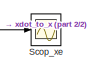
[diagram: root canvas - part 1/2, top right region]
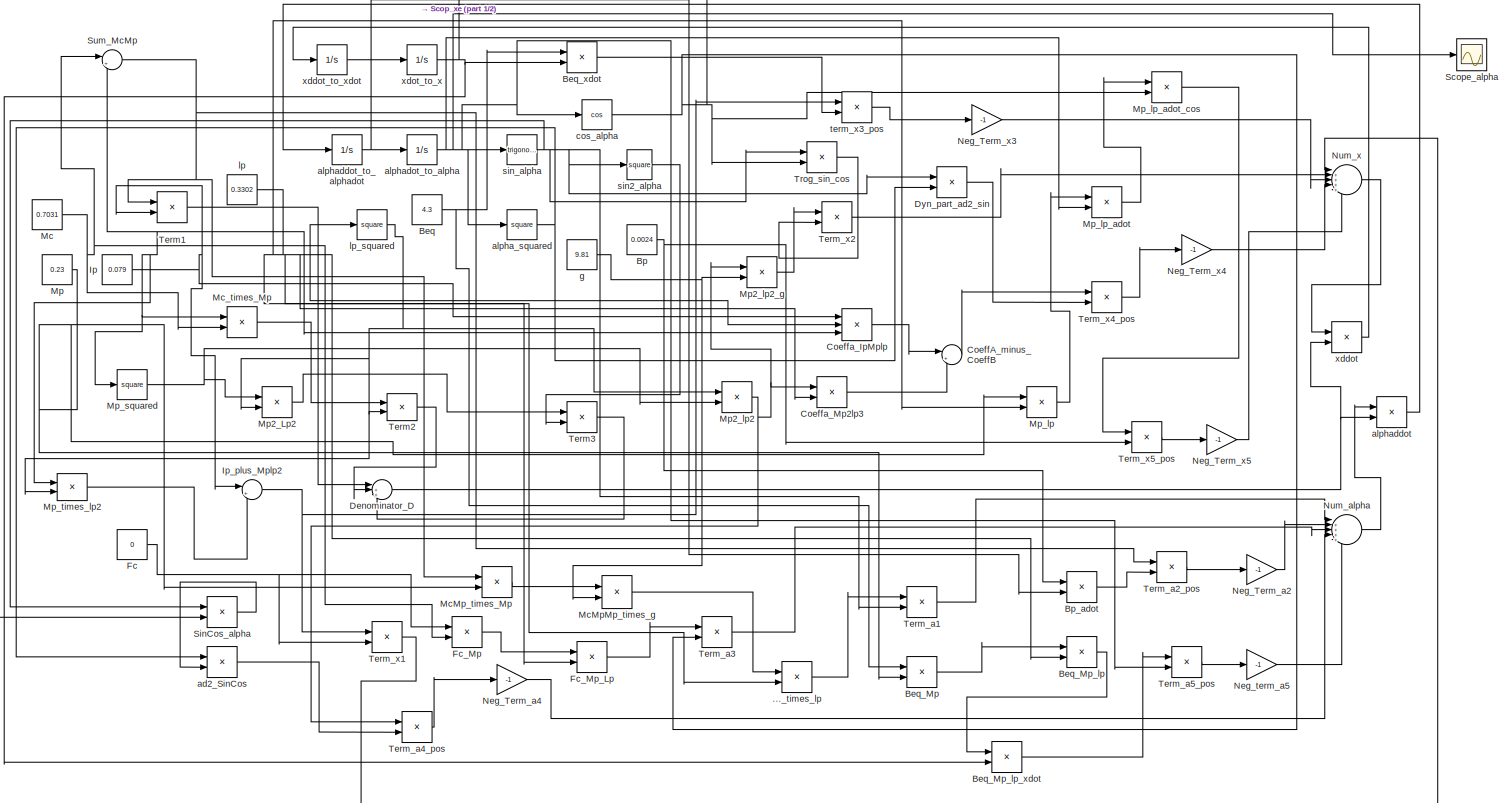
[diagram: root canvas - part 2/2, most of the canvas]
MODEL slx_2061fff94b7e
KIND model
CONFIG AbsTol = auto
CONFIG EnableMultiTasking = off
CONFIG FixedStep = auto
CONFIG MaxStep = auto
CONFIG MinStep = auto
CONFIG RelTol = 1e-3
CONFIG SampleTimeConstraint = Unconstrained
CONFIG SolverName = VariableStepAuto
CONFIG StartTime = 0.0
CONFIG StopTime = 10.0
BLOCK [Product] ..._times_lp
BLOCK [Constant] Beq
  Value = 4.3
BLOCK [Product] Beq_Mp
BLOCK [Product] Beq_Mp_lp
BLOCK [Product] Beq_Mp_lp_xdot
BLOCK [Product] Beq_xdot
BLOCK [Constant] Bp
  Value = 0.0024
BLOCK [Product] Bp_adot
BLOCK [Sum] CoeffA_minus_CoeffB
  Inputs = |+-
  NameLocation = right
BLOCK [Product] Coeffa_IpMplp
  Inputs = 3
BLOCK [Product] Coeffa_Mp2lp3
BLOCK [Sum] Denominator_D
  Inputs = |+++
BLOCK [Product] Dyn_part_ad2_sin
BLOCK [Constant] Fc
  Value = 0
BLOCK [Product] Fc_Mp
BLOCK [Product] Fc_Mp_Lp
BLOCK [Constant] Ip
  Value = 0.079
BLOCK [Sum] Ip_plus_Mplp2
  Inputs = |++
BLOCK [Constant] Mc
  Value = 0.7031
BLOCK [Product] McMpMp_times_g
BLOCK [Product] McMp_times_Mp
BLOCK [Product] Mc_times_Mp
BLOCK [Constant] Mp
  Value = 0.23
BLOCK [Product] Mp2_Lp2
BLOCK [Product] Mp2_lp2
BLOCK [Product] Mp2_lp2_g
BLOCK [Product] Mp_lp
BLOCK [Product] Mp_lp_adot
BLOCK [Product] Mp_lp_adot_cos
BLOCK [Math] Mp_squared
  Operator = square
BLOCK [Product] Mp_times_lp2
BLOCK [Gain] Neg_Term_a2
  Gain = -1
BLOCK [Gain] Neg_Term_a4
  Gain = -1
BLOCK [Gain] Neg_Term_x3
  Gain = -1
BLOCK [Gain] Neg_Term_x4
  Gain = -1
BLOCK [Gain] Neg_Term_x5
  Gain = -1
BLOCK [Gain] Neg_term_a5
  Gain = -1
BLOCK [Sum] Num_alpha
  Inputs = |+++++
BLOCK [Sum] Num_x
  Inputs = |+++++
BLOCK [Scope] Scop_xe
  ActiveDisplayYMaximum = 11.180072654286743
  ActiveDisplayYMinimum = -2.0957040519639394
  ContainerLayout = {"WindowBounds":[1280,1363,631,765],"gridDimensions":{"w":1,"h":1},"tileCount":1,"tileCoverage":1,"columnWeights":1,"rowWeights":1,"tileOccupancy":{"children":[{"id":"/Scop_xe"},{"id":"/Scope_alpha"}]}}
  Floating = off
  GraphicalSettings = {"Style":{"BackgroundColor":[0.12941176470588237,0.12941176470588237,0.12941176470588237],"AxesColor":[0.07058823529411765,0.07058823529411765,0.07058823529411765],"LabelsColor":[0.8509803921568627,0.8509803921568627,0.8509803921568627],"PreserveColors":false,"Visible":[true],"LineStyle":["-"],"LineWidth":[1.5],"BarWidth":[0.9],"LineColor":["auto"],"LineFaceAlpha":[1],"LineEdgeAlpha":[1],"Marker":...<+2003ch>
  MultipleDisplayCache = [{"MaxYLimMag":11.180072654286743,"MaxYLimReal":11.180072654286743,"MinYLimMag":0,"MinYLimReal":-2.0957040519639394,"PlotAsMagnitudePhase":false,"ShowGrid":true,"ShowLegend":false,"Title":"%<SignalLabel>","YLabel":""}]
  NumInputPorts = 1
  ScopeFrameLocation = window
  WasSavedAsWebScope = on
  WindowPosition = [488.000000,222.000000,560.000000,420.000000,]
BLOCK [Scope] Scope_alpha
  ActiveDisplayYMaximum = 78.042537029961892
  ActiveDisplayYMinimum = -96.260001472253833
  ContainerLayout = {"WindowBounds":[1280,1363,631,765],"gridDimensions":{"w":1,"h":1},"tileCount":1,"tileCoverage":1,"columnWeights":1,"rowWeights":1,"tileOccupancy":{"children":[{"id":"/Scop_xe"},{"id":"/Scope_alpha"}]}}
  DataLoggingVariableName = ScopeData1
  Floating = off
  GraphicalSettings = {"Style":{"BackgroundColor":[0.12941176470588237,0.12941176470588237,0.12941176470588237],"AxesColor":[0.07058823529411765,0.07058823529411765,0.07058823529411765],"LabelsColor":[0.8509803921568627,0.8509803921568627,0.8509803921568627],"PreserveColors":false,"Visible":[true],"LineStyle":["-"],"LineWidth":[1.5],"BarWidth":[0.9],"LineColor":["auto"],"LineFaceAlpha":[1],"LineEdgeAlpha":[1],"Marker":...<+1916ch>
  MultipleDisplayCache = [{"MaxYLimMag":96.260001472253833,"MaxYLimReal":78.042537029961892,"MinYLimMag":0,"MinYLimReal":-96.260001472253833,"PlotAsMagnitudePhase":false,"ShowGrid":true,"ShowLegend":false,"Title":"%<SignalLabel>","YLabel":""}]
  NumInputPorts = 1
  ScopeFrameLocation = window
  WasSavedAsWebScope = on
  WindowPosition = [713.000000,191.000000,560.000000,420.000000,]
BLOCK [Product] SinCos_alpha
BLOCK [Sum] Sum_McMp
  Inputs = |++
BLOCK [Product] Term1
BLOCK [Product] Term2
BLOCK [Product] Term3
BLOCK [Product] Term_a1
BLOCK [Product] Term_a2_pos
BLOCK [Product] Term_a3
BLOCK [Product] Term_a4_pos
BLOCK [Product] Term_a5_pos
BLOCK [Product] Term_x1
BLOCK [Product] Term_x2
BLOCK [Product] Term_x4_pos
BLOCK [Product] Term_x5_pos
BLOCK [Product] Trog_sin_cos
BLOCK [Product] ad2_SinCos
BLOCK [Math] alpha_squared
  Operator = square
BLOCK [Product] alphaddot
  Inputs = */
BLOCK [Integrator] alphaddot_to_alphadot
  InitialCondition = pi/180
BLOCK [Integrator] alphadot_to_alpha
BLOCK [Trigonometry] cos_alpha
  Operator = cos
BLOCK [Constant] g
  Value = 9.81
BLOCK [Constant] lp
  NameLocation = right
  Value = 0.3302
BLOCK [Math] lp_squared
  Operator = square
BLOCK [Math] sin2_alpha
  Operator = square
BLOCK [Trigonometry] sin_alpha
BLOCK [Product] term_x3_pos
BLOCK [Product] xddot
  Inputs = */
BLOCK [Integrator] xddot_to_xdot
BLOCK [Integrator] xdot_to_x
LINE ..._times_lp:1 -> Term_a1:1
NET Beq:1 -> Beq_Mp:1, Beq_xdot:1
LINE Beq_Mp:1 -> Beq_Mp_lp:1
LINE Beq_Mp_lp:1 -> Beq_Mp_lp_xdot:1
LINE Beq_Mp_lp_xdot:1 -> Term_a5_pos:1
LINE Beq_xdot:1 -> term_x3_pos:2
NET Bp:1 -> Bp_adot:1, Term_x5_pos:2
LINE Bp_adot:1 -> Term_a2_pos:2
LINE CoeffA_minus_CoeffB:1 -> Term_x4_pos:1
LINE Coeffa_IpMplp:1 -> CoeffA_minus_CoeffB:1
LINE Coeffa_Mp2lp3:1 -> CoeffA_minus_CoeffB:2
NET Denominator_D:1 -> alphaddot:2, xddot:2
LINE Dyn_part_ad2_sin:1 -> Term_x4_pos:2
NET Fc:1 -> Fc_Mp:1, Term_x1:2
LINE Fc_Mp:1 -> Fc_Mp_Lp:1
LINE Fc_Mp_Lp:1 -> Term_a3:1
NET Ip:1 -> Coeffa_IpMplp:1, Ip_plus_Mplp2:1, Term1:2
NET Ip_plus_Mplp2:1 -> Term_x1:1, term_x3_pos:1
NET Mc:1 -> Fc_Mp:2, Mc_times_Mp:2, Sum_McMp:1
LINE McMpMp_times_g:1 -> ..._times_lp:1
LINE McMp_times_Mp:1 -> McMpMp_times_g:1
LINE Mc_times_Mp:1 -> Term2:1
LINE Mp2_Lp2:1 -> Term3:1
NET Mp2_lp2:1 -> Coeffa_Mp2lp3:1, Mp2_lp2_g:1, Term_a4_pos:1
LINE Mp2_lp2_g:1 -> Term_x2:1
NET Mp:1 -> Beq_Mp:2, Coeffa_IpMplp:3, McMp_times_Mp:2, Mc_times_Mp:1, Mp_lp:1, Mp_squared:1, Mp_times_lp2:1, Sum_McMp:2
LINE Mp_lp:1 -> Mp_lp_adot:1
LINE Mp_lp_adot:1 -> Mp_lp_adot_cos:1
LINE Mp_lp_adot_cos:1 -> Term_x5_pos:1
NET Mp_squared:1 -> Mp2_Lp2:1, Mp2_lp2:2
LINE Mp_times_lp2:1 -> Ip_plus_Mplp2:2
LINE Neg_Term_a2:1 -> Num_alpha:2
LINE Neg_Term_a4:1 -> Num_alpha:4
LINE Neg_Term_x3:1 -> Num_x:3
LINE Neg_Term_x4:1 -> Num_x:4
LINE Neg_Term_x5:1 -> Num_x:5
LINE Neg_term_a5:1 -> Num_alpha:5
LINE Num_alpha:1 -> alphaddot:1
LINE Num_x:1 -> xddot:1
LINE SinCos_alpha:1 -> ad2_SinCos:2
NET Sum_McMp:1 -> McMp_times_Mp:1, Term1:1, Term_a2_pos:1
LINE Term1:1 -> Denominator_D:1
LINE Term2:1 -> Denominator_D:2
LINE Term3:1 -> Denominator_D:3
LINE Term_a1:1 -> Num_alpha:1
LINE Term_a2_pos:1 -> Neg_Term_a2:1
LINE Term_a3:1 -> Num_alpha:3
LINE Term_a4_pos:1 -> Neg_Term_a4:1
LINE Term_a5_pos:1 -> Neg_term_a5:1
LINE Term_x1:1 -> Num_x:1
LINE Term_x2:1 -> Num_x:2
LINE Term_x4_pos:1 -> Neg_Term_x4:1
LINE Term_x5_pos:1 -> Neg_Term_x5:1
LINE Trog_sin_cos:1 -> Term_x2:2
LINE ad2_SinCos:1 -> Term_a4_pos:2
NET alpha_squared:1 -> Dyn_part_ad2_sin:2, ad2_SinCos:1
LINE alphaddot:1 -> alphaddot_to_alphadot:1
NET alphaddot_to_alphadot:1 -> Bp_adot:2, alphadot_to_alpha:1
NET alphadot_to_alpha:1 -> Mp_lp_adot:2, Scope_alpha:1, Term_a5_pos:2, alpha_squared:1, cos_alpha:1, sin_alpha:1
NET cos_alpha:1 -> Mp_lp_adot_cos:2, SinCos_alpha:2, Term_a3:2, Trog_sin_cos:2
NET g:1 -> McMpMp_times_g:2, Mp2_lp2_g:2
NET lp:1 -> ..._times_lp:2, Beq_Mp_lp:2, Coeffa_IpMplp:2, Coeffa_Mp2lp3:2, Fc_Mp_Lp:2, Mp_lp:2, lp_squared:1
NET lp_squared:1 -> Mp2_Lp2:2, Mp2_lp2:1, Mp_times_lp2:2, Term2:2
LINE sin2_alpha:1 -> Term3:2
NET sin_alpha:1 -> Dyn_part_ad2_sin:1, SinCos_alpha:1, Term_a1:2, Trog_sin_cos:1, sin2_alpha:1
LINE term_x3_pos:1 -> Neg_Term_x3:1
LINE xddot:1 -> xddot_to_xdot:1
LINE xddot_to_xdot:1 -> xdot_to_x:1
NET xdot_to_x:1 -> Beq_Mp_lp_xdot:2, Beq_xdot:2, Scop_xe:1
note: NET lines group one-source signal fan-out (src -> all destinations, sorted); 1:1 wires keep LINE
